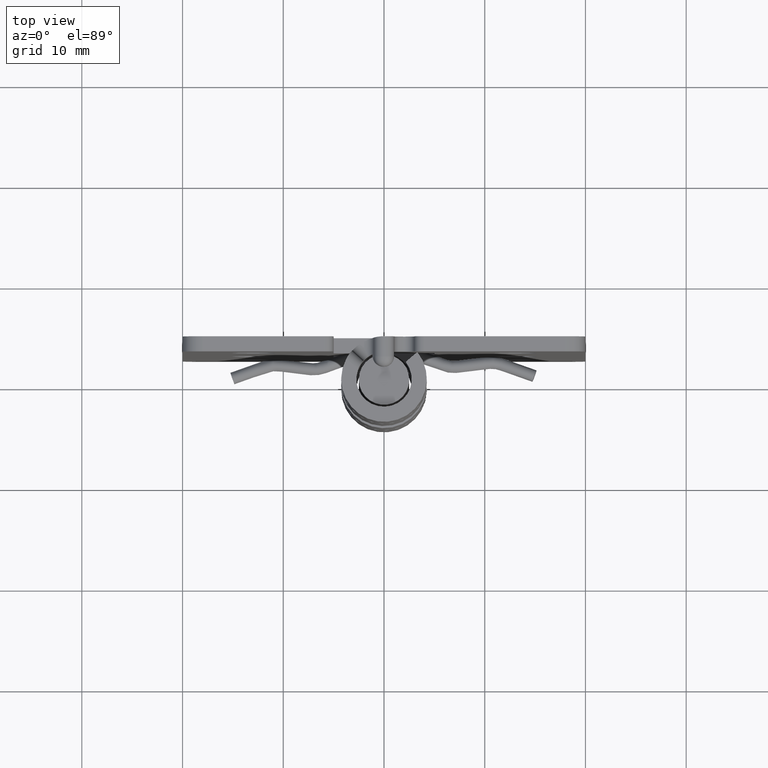
[diagram: clean part render]
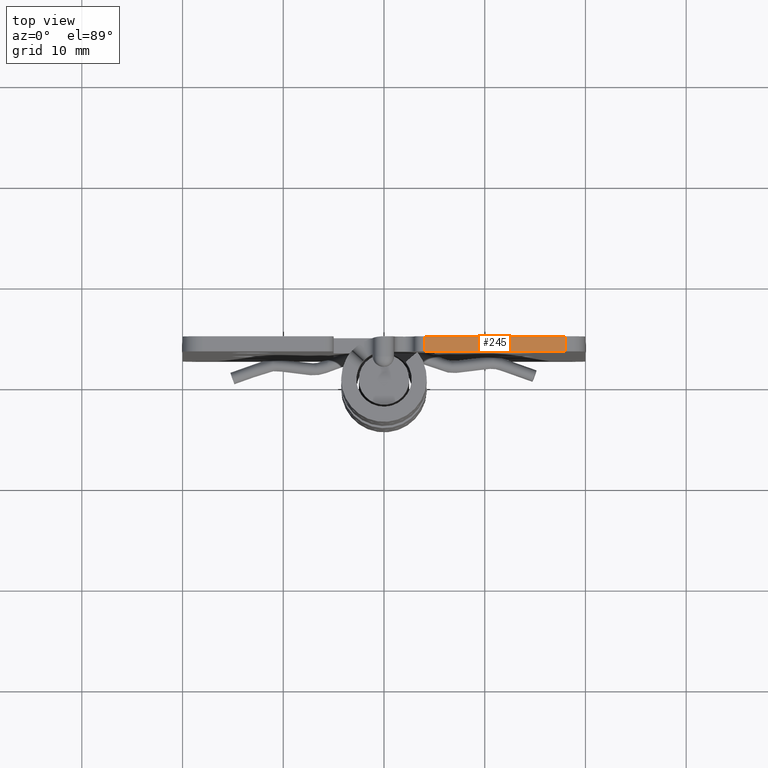
[diagram: same view with one face highlighted and labeled with its STEP entity id]
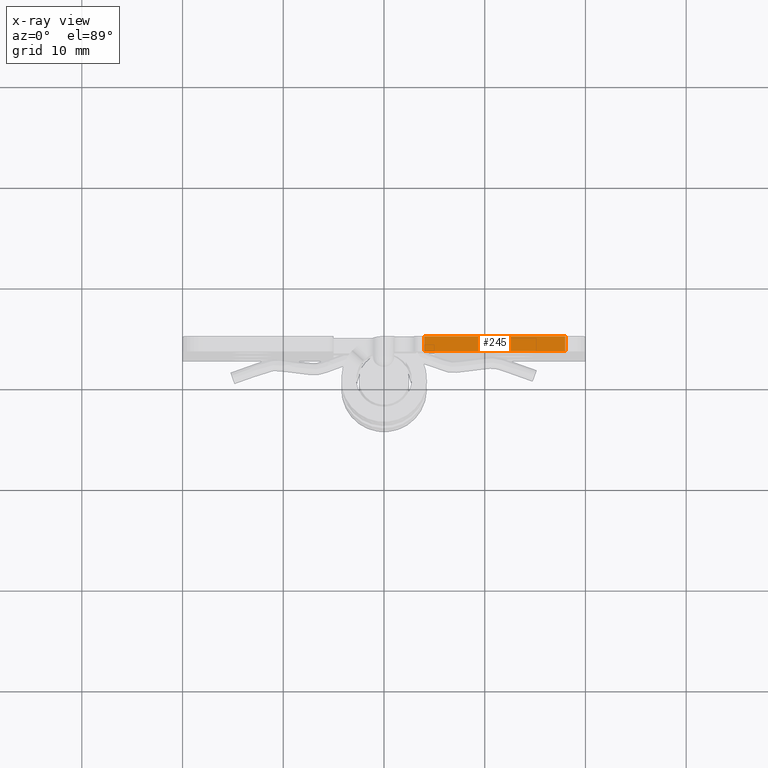
[diagram: x-ray of the same camera — body ghosted, the highlighted face saturated]
A machine part, top view. The second image highlights one B-rep face of the part: STEP entity #245.
The next image is the same camera in x-ray: the body ghosted, the highlighted face saturated — about 0% of this face is hidden behind the body in this view.
In plain terms, the highlighted planar face has unit normal (0, 0, 1).
Its self-contained STEP definition (entity closure, byte-faithful):
#245=ADVANCED_FACE('',(#877),#876,.T.);
#876=PLANE('',#1487);
#877=FACE_OUTER_BOUND('',#1488,.T.);
#1484=CARTESIAN_POINT('',(2.60000000000E+00,2.60000000000E+00,6.00000000000E+01));
#1485=DIRECTION('',(0.00000000000E+00,-0.00000000000E+00,1.00000000000E+00));
#1486=DIRECTION('',(1.00000000000E+00,0.00000000000E+00,0.00000000000E+00));
#1487=AXIS2_PLACEMENT_3D('',#1484,#1485,#1486);
#1488=EDGE_LOOP('',(#6093,#6094,#6095,#6096));
#6093=ORIENTED_EDGE('',*,*,#6336,.T.);
#6094=ORIENTED_EDGE('',*,*,#6414,.T.);
#6095=ORIENTED_EDGE('',*,*,#6399,.T.);
#6096=ORIENTED_EDGE('',*,*,#6318,.F.);
#6318=EDGE_CURVE('',#7148,#7134,#7155,.T.);
#6336=EDGE_CURVE('',#7148,#7269,#7276,.T.);
#6399=EDGE_CURVE('',#7697,#7134,#7698,.T.);
#6414=EDGE_CURVE('',#7269,#7697,#7797,.T.);
#7134=VERTEX_POINT('',#8399);
#7148=VERTEX_POINT('',#8408);
#7155=LINE('',#8413,#8414);
#7269=VERTEX_POINT('',#8483);
#7276=LINE('',#8488,#8489);
#7697=VERTEX_POINT('',#8819);
#7698=LINE('',#8820,#8821);
#7797=LINE('',#8882,#8883);
#8399=CARTESIAN_POINT('',(4.00000000000E+00,4.25000000000E+00,6.00000000000E+01));
#8408=CARTESIAN_POINT('',(4.00000000000E+00,2.75000000000E+00,6.00000000000E+01));
#8413=CARTESIAN_POINT('',(4.00000000000E+00,2.75000000000E+00,6.00000000000E+01));
#8414=VECTOR('',#8415,1.50000000000E+00);
#8415=DIRECTION('',(0.00000000000E+00,1.00000000000E+00,0.00000000000E+00));
#8483=CARTESIAN_POINT('',(1.80000000000E+01,2.75000000000E+00,6.00000000000E+01));
#8488=CARTESIAN_POINT('',(4.00000000000E+00,2.75000000000E+00,6.00000000000E+01));
#8489=VECTOR('',#8490,1.40000000000E+01);
#8490=DIRECTION('',(1.00000000000E+00,0.00000000000E+00,0.00000000000E+00));
#8819=CARTESIAN_POINT('',(1.80000000000E+01,4.25000000000E+00,6.00000000000E+01));
#8820=CARTESIAN_POINT('',(1.80000000000E+01,4.25000000000E+00,6.00000000000E+01));
#8821=VECTOR('',#8822,1.40000000000E+01);
#8822=DIRECTION('',(-1.00000000000E+00,0.00000000000E+00,0.00000000000E+00));
#8882=CARTESIAN_POINT('',(1.80000000000E+01,2.75000000000E+00,6.00000000000E+01));
#8883=VECTOR('',#8884,1.50000000000E+00);
#8884=DIRECTION('',(0.00000000000E+00,1.00000000000E+00,0.00000000000E+00));